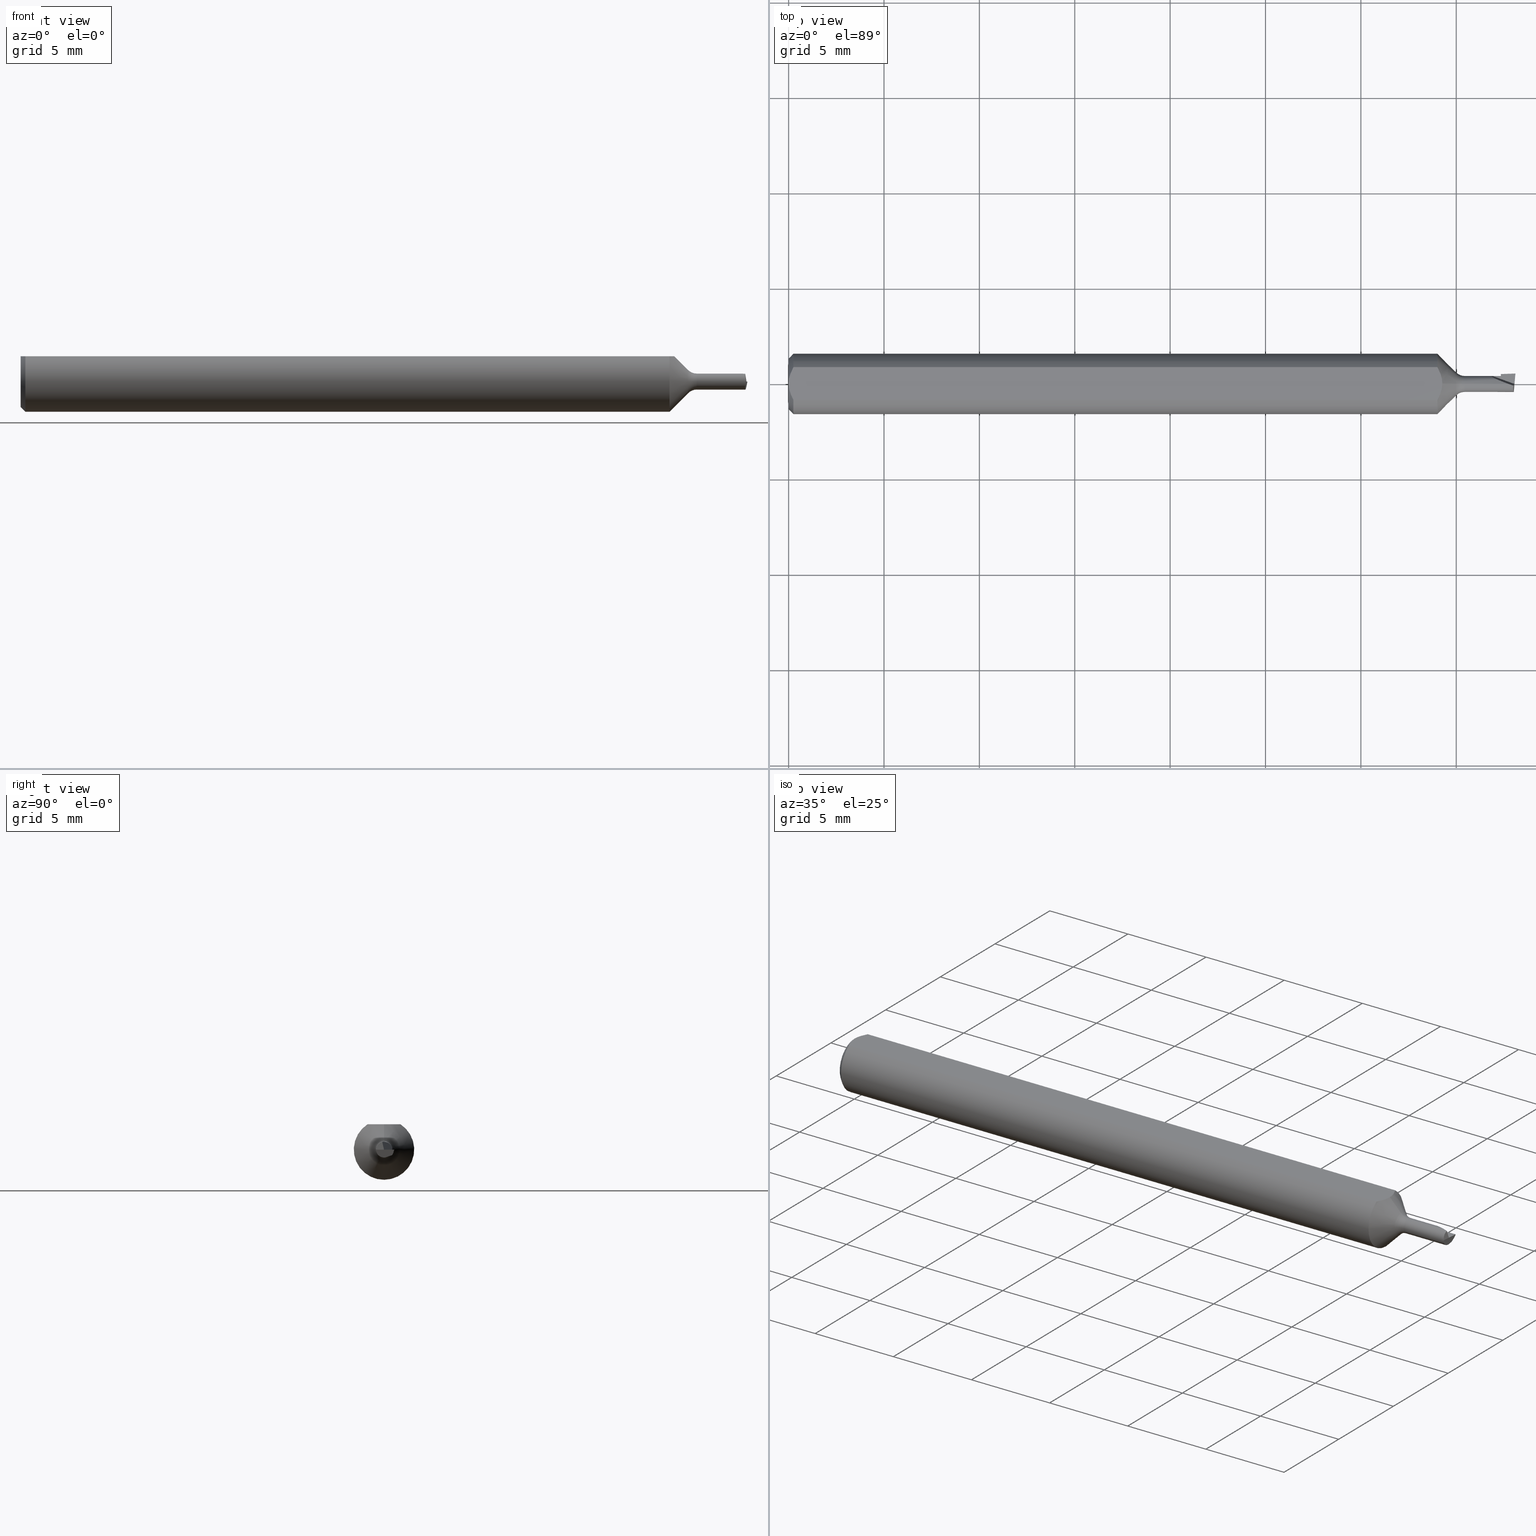
[diagram: canonical four-view strip — front | top / right | iso, engineering-drawing reading convention]
A machine part, canonical four-view strip (front | top / right | iso — engineering-drawing reading convention). The complete STEP part file that produces these views, byte-faithful:
ISO-10303-21;
HEADER;
FILE_DESCRIPTION (( 'STEP AP203' ),
    '1' );
FILE_NAME ('210031-MB040100.STEP',
    '2025-01-30T17:45:15',
    ( '' ),
    ( '' ),
    'SwSTEP 2.0',
    'SolidWorks 2024',
    '' );
FILE_SCHEMA (( 'CONFIG_CONTROL_DESIGN' ));
ENDSEC;

DATA;
#1 = VECTOR ( 'NONE', #441, 39.37007874015748143 ) ;
#2 = CARTESIAN_POINT ( 'NONE',  ( 1.470018275189427071, 0.02045301509892536590, -1.647564196170101210E-18 ) ) ;
#3 = CARTESIAN_POINT ( 'NONE',  ( 1.395355339059327404, 0.000000000000000000, 0.04150000000000000216 ) ) ;
#4 = APPLICATION_CONTEXT ( 'configuration controlled 3d designs of mechanical parts and assemblies' ) ;
#5 = EDGE_CURVE ( 'NONE', #504, #44, #544, .T. ) ;
#6 = ORIENTED_EDGE ( 'NONE', *, *, #378, .F. ) ;
#7 = CARTESIAN_POINT ( 'NONE',  ( 1.405807281785768525, 0.03358807364565601083, -2.052597612783503544E-18 ) ) ;
#8 = CARTESIAN_POINT ( 'NONE',  ( 1.496425322068737573, 0.005643332364873441392, -0.01550492824296752052 ) ) ;
#9 = ORIENTED_EDGE ( 'NONE', *, *, #357, .F. ) ;
#10 = AXIS2_PLACEMENT_3D ( 'NONE', #467, #445, #404 ) ;
#11 = DIRECTION ( 'NONE',  ( 0.9993908270190960952, 0.03489949670248750774, -0.000000000000000000 ) ) ;
#12 = CARTESIAN_POINT ( 'NONE',  ( 0.001055043921644817405, -0.01186408073217191071, 0.05235000000000002152 ) ) ;
#13 = ORIENTED_EDGE ( 'NONE', *, *, #86, .T. ) ;
#14 = AXIS2_PLACEMENT_3D ( 'NONE', #169, #67, #178 ) ;
#15 = CARTESIAN_POINT ( 'NONE',  ( 1.470115918604895766, 0.01765687352215218955, -0.005999999999999993186 ) ) ;
#16 = PLANE ( 'NONE',  #600 ) ;
#17 = EDGE_LOOP ( 'NONE', ( #490, #629, #29, #135 ) ) ;
#18 = CARTESIAN_POINT ( 'NONE',  ( 1.495542229423954428, -0.01649999999999988629, 0.008032463953595881181 ) ) ;
#19 = CARTESIAN_POINT ( 'NONE',  ( 1.500000000000000222, 0.000000000000000000, 0.000000000000000000 ) ) ;
#20 = LOCAL_TIME ( 9, 45, 15.00000000000000000, #94 ) ;
#21 = ADVANCED_FACE ( 'NONE', ( #152 ), #463, .F. ) ;
#22 = AXIS2_PLACEMENT_3D ( 'NONE', #449, #393, #179 ) ;
#23 = VERTEX_POINT ( 'NONE', #266 ) ;
#24 = DIRECTION ( 'NONE',  ( -0.1550261498412135730, -0.2183092626835818617, 0.9634873941531152397 ) ) ;
#25 = LINE ( 'NONE', #285, #71 ) ;
#26 = VERTEX_POINT ( 'NONE', #207 ) ;
#27 = CARTESIAN_POINT ( 'NONE',  ( 1.344483314197798984, -0.02321803743435396639, 0.05235000000000001458 ) ) ;
#28 = CARTESIAN_POINT ( 'NONE',  ( 1.495791212049516483, 2.020667218593131014E-18, -0.01649999999999998690 ) ) ;
#29 = ORIENTED_EDGE ( 'NONE', *, *, #167, .T. ) ;
#30 = ADVANCED_FACE ( 'NONE', ( #583 ), #309, .F. ) ;
#31 = CARTESIAN_POINT ( 'NONE',  ( 1.496675430786014616, -0.01650000000000000078, 1.657078857424774083E-16 ) ) ;
#32 = CARTESIAN_POINT ( 'NONE',  ( 1.495443673491787084, 0.02531007852008724038, -0.03465938240595500125 ) ) ;
#33 = VERTEX_POINT ( 'NONE', #369 ) ;
#34 = CARTESIAN_POINT ( 'NONE',  ( 1.470115918604895766, 0.01765687352215218955, -0.005999999999999993186 ) ) ;
#35 = AXIS2_PLACEMENT_3D ( 'NONE', #658, #381, #605 ) ;
#36 = VECTOR ( 'NONE', #92, 39.37007874015748143 ) ;
#37 = ORIENTED_EDGE ( 'NONE', *, *, #230, .T. ) ;
#38 = VERTEX_POINT ( 'NONE', #527 ) ;
#39 =( NAMED_UNIT ( * ) PLANE_ANGLE_UNIT ( ) SI_UNIT ( $, .RADIAN. ) );
#40 = CYLINDRICAL_SURFACE ( 'NONE', #459, 0.01649999999999998690 ) ;
#41 = VECTOR ( 'NONE', #679, 39.37007874015748143 ) ;
#42 = ADVANCED_FACE ( 'NONE', ( #202 ), #478, .F. ) ;
#43 =( BOUNDED_CURVE ( )  B_SPLINE_CURVE ( 3, ( #407, #568, #456, #85 ),
 .UNSPECIFIED., .F., .T. ) 
 B_SPLINE_CURVE_WITH_KNOTS ( ( 4, 4 ),
 ( 5.728084607564590591, 7.298880934359496919 ),
 .UNSPECIFIED. ) 
 CURVE ( )  GEOMETRIC_REPRESENTATION_ITEM ( )  RATIONAL_B_SPLINE_CURVE ( ( 1.000000000000000000, 0.8047378541243627170, 0.8047378541243627170, 1.000000000000000000 ) ) 
 REPRESENTATION_ITEM ( '' )  );
#44 = VERTEX_POINT ( 'NONE', #373 ) ;
#45 = APPROVAL_STATUS ( 'not_yet_approved' ) ;
#46 = CARTESIAN_POINT ( 'NONE',  ( 1.470000000000000195, 0.01650000000000000078, 0.000000000000000000 ) ) ;
#47 = PRODUCT ( '210031-MB040100', '210031-MB040100', '', ( #52 ) ) ;
#48 =( GEOMETRIC_REPRESENTATION_CONTEXT ( 3 ) GLOBAL_UNCERTAINTY_ASSIGNED_CONTEXT ( ( #668 ) ) GLOBAL_UNIT_ASSIGNED_CONTEXT ( ( #257, #39, #579 ) ) REPRESENTATION_CONTEXT ( 'NONE', 'WORKASPACE' ) );
#49 = VERTEX_POINT ( 'NONE', #211 ) ;
#50 = PERSON_AND_ORGANIZATION_ROLE ( 'classification_officer' ) ;
#51 = CARTESIAN_POINT ( 'NONE',  ( 1.497492662452384771, 0.01333106971337489829, -0.01270682067925646593 ) ) ;
#52 = MECHANICAL_CONTEXT ( 'NONE', #549, 'mechanical' ) ;
#53 = CARTESIAN_POINT ( 'NONE',  ( 1.470018275189427071, 0.02045301509892536590, -1.647564196170101210E-18 ) ) ;
#54 = EDGE_CURVE ( 'NONE', #229, #526, #356, .T. ) ;
#55 = EDGE_CURVE ( 'NONE', #526, #229, #125, .T. ) ;
#56 = DIRECTION ( 'NONE',  ( 0.000000000000000000, 0.000000000000000000, 1.000000000000000000 ) ) ;
#57 = APPROVAL_DATE_TIME ( #536, #368 ) ;
#58 = DIRECTION ( 'NONE',  ( -1.000000000000000000, -0.000000000000000000, -0.000000000000000000 ) ) ;
#59 = DIRECTION ( 'NONE',  ( 0.000000000000000000, 0.000000000000000000, -1.000000000000000000 ) ) ;
#60 = DIRECTION ( 'NONE',  ( -0.3303660895493408800, -0.9076733711903733903, -0.2588190451025187966 ) ) ;
#61 = EDGE_CURVE ( 'NONE', #144, #279, #363, .T. ) ;
#62 = CARTESIAN_POINT ( 'NONE',  ( 1.470138601854636073, 0.01700731023731563707, -0.01136877855453887268 ) ) ;
#63 = CARTESIAN_POINT ( 'NONE',  ( 1.418326087892087362, 0.06798321074129824726, -1.341783904977988432E-18 ) ) ;
#64 = PRODUCT_DEFINITION ( 'UNKNOWN', '', #111, #168 ) ;
#65 = B_SPLINE_CURVE_WITH_KNOTS ( 'NONE', 3,
 ( #604, #350, #411, #27, #186, #517 ),
 .UNSPECIFIED., .F., .F.,
 ( 4, 2, 4 ),
 ( 0.002951453973688350149, 0.003400644490106725579, 0.003849835006525100575 ),
 .UNSPECIFIED. ) ;
#66 = ORIENTED_EDGE ( 'NONE', *, *, #55, .F. ) ;
#67 = DIRECTION ( 'NONE',  ( -1.000000000000000000, -0.000000000000000000, -0.000000000000000000 ) ) ;
#68 = CARTESIAN_POINT ( 'NONE',  ( 1.405807281785768525, 0.03358807364565601083, -2.052597612783503544E-18 ) ) ;
#69 = VECTOR ( 'NONE', #688, 39.37007874015748854 ) ;
#70 = ORIENTED_EDGE ( 'NONE', *, *, #446, .T. ) ;
#71 = VECTOR ( 'NONE', #240, 39.37007874015748143 ) ;
#72 = DIRECTION ( 'NONE',  ( 0.1396943646708923570, 0.000000000000000000, -0.9901946699913082295 ) ) ;
#73 = CARTESIAN_POINT ( 'NONE',  ( 0.000000000000000000, 0.000000000000000000, 0.000000000000000000 ) ) ;
#74 = ORIENTED_EDGE ( 'NONE', *, *, #314, .F. ) ;
#75 = AXIS2_PLACEMENT_3D ( 'NONE', #431, #113, #273 ) ;
#76 = DIRECTION ( 'NONE',  ( -0.7071067811865437980, 8.659560562354978464E-17, -0.7071067811865512365 ) ) ;
#77 = DIRECTION ( 'NONE',  ( -1.000000000000000000, -0.000000000000000000, -0.000000000000000000 ) ) ;
#78 = EDGE_CURVE ( 'NONE', #656, #212, #262, .T. ) ;
#79 = ORIENTED_EDGE ( 'NONE', *, *, #539, .T. ) ;
#80 = LINE ( 'NONE', #403, #382 ) ;
#81 = CYLINDRICAL_SURFACE ( 'NONE', #22, 0.01649999999999998690 ) ;
#82 = ORGANIZATION ( 'UNSPECIFIED', 'UNSPECIFIED', '' ) ;
#83 = ORIENTED_EDGE ( 'NONE', *, *, #387, .T. ) ;
#84 = CARTESIAN_POINT ( 'NONE',  ( 1.496675430786014616, -0.01650000000000000078, 1.657078857424774083E-16 ) ) ;
#85 = CARTESIAN_POINT ( 'NONE',  ( 1.496675430786014616, -0.01650000000000000078, 1.657078857424774083E-16 ) ) ;
#86 = EDGE_CURVE ( 'NONE', #26, #229, #654, .T. ) ;
#87 = EDGE_LOOP ( 'NONE', ( #531, #637 ) ) ;
#88 = LINE ( 'NONE', #299, #137 ) ;
#89 = CARTESIAN_POINT ( 'NONE',  ( 1.395355339059327404, 0.000000000000000000, 0.000000000000000000 ) ) ;
#90 = EDGE_LOOP ( 'NONE', ( #70, #353, #400, #306 ) ) ;
#91 = CARTESIAN_POINT ( 'NONE',  ( 1.339150000000000285, 0.000000000000000000, 0.000000000000000000 ) ) ;
#92 = DIRECTION ( 'NONE',  ( 0.1293675338645381423, 0.9317961139776900215, 0.3391460498927904577 ) ) ;
#93 = VERTEX_POINT ( 'NONE', #319 ) ;
#94 = COORDINATED_UNIVERSAL_TIME_OFFSET ( 8, 0, .BEHIND. ) ;
#95 = ORIENTED_EDGE ( 'NONE', *, *, #357, .T. ) ;
#96 = EDGE_LOOP ( 'NONE', ( #557, #181, #405, #199, #671, #209 ) ) ;
#97 = PERSON_AND_ORGANIZATION ( #697, #82 ) ;
#98 = APPROVAL ( #45, 'UNSPECIFIED' ) ;
#99 = DIRECTION ( 'NONE',  ( 0.03162968562512429721, -0.9057556888204041368, 0.4226182617407003295 ) ) ;
#100 = ORIENTED_EDGE ( 'NONE', *, *, #365, .F. ) ;
#101 = CALENDAR_DATE ( 2025, 30, 1 ) ;
#102 = CARTESIAN_POINT ( 'NONE',  ( 1.485163143730661606, 0.000000000000000000, 0.01649999999999998690 ) ) ;
#103 = ORIENTED_EDGE ( 'NONE', *, *, #237, .T. ) ;
#104 = DIRECTION ( 'NONE',  ( 0.000000000000000000, 0.000000000000000000, -1.000000000000000000 ) ) ;
#105 = AXIS2_PLACEMENT_3D ( 'NONE', #621, #556, #563 ) ;
#106 = EDGE_CURVE ( 'NONE', #394, #279, #534, .T. ) ;
#107 = DIRECTION ( 'NONE',  ( 1.000000000000000000, 0.000000000000000000, 0.000000000000000000 ) ) ;
#108 = VECTOR ( 'NONE', #494, 39.37007874015748854 ) ;
#109 = COORDINATED_UNIVERSAL_TIME_OFFSET ( 8, 0, .BEHIND. ) ;
#110 = DIRECTION ( 'NONE',  ( 0.9396926207859126468, -0.3420201433256568335, 0.000000000000000000 ) ) ;
#111 = PRODUCT_DEFINITION_FORMATION_WITH_SPECIFIED_SOURCE ( 'ANY', '', #47, .NOT_KNOWN. ) ;
#112 = AXIS2_PLACEMENT_3D ( 'NONE', #19, #297, #617 ) ;
#113 = DIRECTION ( 'NONE',  ( -1.000000000000000000, -0.000000000000000000, -0.000000000000000000 ) ) ;
#114 = FACE_OUTER_BOUND ( 'NONE', #687, .T. ) ;
#115 = ADVANCED_FACE ( 'NONE', ( #143 ), #40, .T. ) ;
#116 = PLANE ( 'NONE',  #412 ) ;
#117 = CARTESIAN_POINT ( 'NONE',  ( 1.496425322068737573, 0.005643332364873441392, -0.01550492824296752052 ) ) ;
#118 = MANIFOLD_SOLID_BREP ( 'Cut-Extrude8', #626 ) ;
#119 = LINE ( 'NONE', #328, #223 ) ;
#120 = CARTESIAN_POINT ( 'NONE',  ( 0.000000000000000000, 0.000000000000000000, 0.05235000000000005621 ) ) ;
#121 = ORIENTED_EDGE ( 'NONE', *, *, #446, .F. ) ;
#122 = CARTESIAN_POINT ( 'NONE',  ( 1.500000000000000222, 0.06235000000000000264, 0.05235000000000001458 ) ) ;
#123 = PLANE ( 'NONE',  #198 ) ;
#124 = AXIS2_PLACEMENT_3D ( 'NONE', #63, #483, #649 ) ;
#125 = CIRCLE ( 'NONE', #520, 0.05235000000000005621 ) ;
#126 = EDGE_CURVE ( 'NONE', #231, #313, #220, .T. ) ;
#127 = ORIENTED_EDGE ( 'NONE', *, *, #415, .T. ) ;
#128 = CARTESIAN_POINT ( 'NONE',  ( 1.470000000000000195, 0.000000000000000000, 0.000000000000000000 ) ) ;
#129 = FACE_OUTER_BOUND ( 'NONE', #388, .T. ) ;
#130 = ORIENTED_EDGE ( 'NONE', *, *, #150, .F. ) ;
#131 = AXIS2_PLACEMENT_3D ( 'NONE', #505, #359, #414 ) ;
#132 = FACE_OUTER_BOUND ( 'NONE', #694, .T. ) ;
#133 = CARTESIAN_POINT ( 'NONE',  ( 1.470000000000000195, 0.02045237691524754570, -1.865940685009545610E-18 ) ) ;
#134 =( BOUNDED_CURVE ( )  B_SPLINE_CURVE ( 3, ( #117, #226, #547, #432 ),
 .UNSPECIFIED., .F., .T. ) 
 B_SPLINE_CURVE_WITH_KNOTS ( ( 4, 4 ),
 ( 5.379018757165728637, 5.728084607564590591 ),
 .UNSPECIFIED. ) 
 CURVE ( )  GEOMETRIC_REPRESENTATION_ITEM ( )  RATIONAL_B_SPLINE_CURVE ( ( 1.000000000000000000, 0.9898718353414721616, 0.9898718353414721616, 1.000000000000000000 ) ) 
 REPRESENTATION_ITEM ( '' )  );
#135 = ORIENTED_EDGE ( 'NONE', *, *, #302, .T. ) ;
#136 = CARTESIAN_POINT ( 'NONE',  ( 1.395355339059327404, 0.000000000000000000, 0.000000000000000000 ) ) ;
#137 = VECTOR ( 'NONE', #303, 39.37007874015748143 ) ;
#138 = ADVANCED_FACE ( 'NONE', ( #218 ), #322, .F. ) ;
#139 = VERTEX_POINT ( 'NONE', #162 ) ;
#140 = FACE_OUTER_BOUND ( 'NONE', #96, .T. ) ;
#141 = FACE_OUTER_BOUND ( 'NONE', #460, .T. ) ;
#142 = ORIENTED_EDGE ( 'NONE', *, *, #167, .F. ) ;
#143 = FACE_OUTER_BOUND ( 'NONE', #553, .T. ) ;
#144 = VERTEX_POINT ( 'NONE', #8 ) ;
#145 = LINE ( 'NONE', #451, #689 ) ;
#146 = CONICAL_SURFACE ( 'NONE', #206, 0.02382233047033627607, 0.7853981633974536081 ) ;
#147 = DIRECTION ( 'NONE',  ( 0.000000000000000000, -0.4228298219691067339, -0.9062091048171904140 ) ) ;
#148 = B_SPLINE_CURVE_WITH_KNOTS ( 'NONE', 3,
 ( #538, #277, #12, #646, #542, #173 ),
 .UNSPECIFIED., .F., .F.,
 ( 4, 2, 4 ),
 ( 0.001820301466808305416, 0.002269751589840578697, 0.002719201712872851978 ),
 .UNSPECIFIED. ) ;
#149 = VERTEX_POINT ( 'NONE', #386 ) ;
#150 = EDGE_CURVE ( 'NONE', #144, #364, #134, .T. ) ;
#151 =( LENGTH_UNIT ( ) NAMED_UNIT ( * ) SI_UNIT ( $, .METRE. ) );
#152 = FACE_OUTER_BOUND ( 'NONE', #341, .T. ) ;
#153 = ORIENTED_EDGE ( 'NONE', *, *, #54, .F. ) ;
#154 = PERSON_AND_ORGANIZATION ( #697, #82 ) ;
#155 = CARTESIAN_POINT ( 'NONE',  ( 0.004671770759546966557, 0.02323517832780101766, 0.05235000000000002152 ) ) ;
#156 = ORIENTED_EDGE ( 'NONE', *, *, #5, .T. ) ;
#157 = DATE_TIME_ROLE ( 'classification_date' ) ;
#158 = CARTESIAN_POINT ( 'NONE',  ( 0.000000000000000000, 0.000000000000000000, 0.05235000000000005621 ) ) ;
#159 = ADVANCED_FACE ( 'NONE', ( #176 ), #398, .T. ) ;
#160 = ADVANCED_FACE ( 'NONE', ( #376 ), #705, .F. ) ;
#161 = PERSON_AND_ORGANIZATION_ROLE ( 'creator' ) ;
#162 = CARTESIAN_POINT ( 'NONE',  ( 1.339150000000000285, 0.03386738844375220686, 0.05235000000000000070 ) ) ;
#163 = VECTOR ( 'NONE', #215, 39.37007874015748143 ) ;
#164 = APPROVAL_DATE_TIME ( #522, #511 ) ;
#165 = DIRECTION ( 'NONE',  ( 1.000000000000000000, 0.000000000000000000, 0.000000000000000000 ) ) ;
#166 = VECTOR ( 'NONE', #612, 39.37007874015748143 ) ;
#167 = EDGE_CURVE ( 'NONE', #231, #23, #611, .T. ) ;
#168 = DESIGN_CONTEXT ( 'detailed design', #4, 'design' ) ;
#169 = CARTESIAN_POINT ( 'NONE',  ( 1.339150000000000285, 0.000000000000000000, 0.000000000000000000 ) ) ;
#170 = DIRECTION ( 'NONE',  ( 0.000000000000000000, 0.000000000000000000, -1.000000000000000000 ) ) ;
#171 = CC_DESIGN_PERSON_AND_ORGANIZATION_ASSIGNMENT ( #429, #635, ( #111 ) ) ;
#172 = CARTESIAN_POINT ( 'NONE',  ( 1.491155917282976473, 0.03218992960932576253, 0.06931876481191019679 ) ) ;
#173 = CARTESIAN_POINT ( 'NONE',  ( 0.01000000000000853331, -0.03386738844395138087, 0.05235000000000001458 ) ) ;
#174 = VERTEX_POINT ( 'NONE', #599 ) ;
#175 = CARTESIAN_POINT ( 'NONE',  ( 1.498118091431547949, -1.031336641992635892E-05, 2.018179798846331726E-16 ) ) ;
#176 = FACE_OUTER_BOUND ( 'NONE', #641, .T. ) ;
#177 = ORIENTED_EDGE ( 'NONE', *, *, #659, .F. ) ;
#178 = DIRECTION ( 'NONE',  ( 0.000000000000000000, 0.000000000000000000, 1.000000000000000000 ) ) ;
#179 = DIRECTION ( 'NONE',  ( 0.000000000000000000, 0.000000000000000000, 1.000000000000000000 ) ) ;
#180 = ADVANCED_FACE ( 'NONE', ( #325 ), #307, .F. ) ;
#181 = ORIENTED_EDGE ( 'NONE', *, *, #427, .T. ) ;
#182 = DIRECTION ( 'NONE',  ( -1.000000000000000000, 0.000000000000000000, 0.000000000000000000 ) ) ;
#183 = CARTESIAN_POINT ( 'NONE',  ( 1.377677669529663751, 2.917394075872780740E-18, -0.02382233047033629689 ) ) ;
#184 = LOCAL_TIME ( 9, 45, 15.00000000000000000, #585 ) ;
#185 = ORIENTED_EDGE ( 'NONE', *, *, #433, .F. ) ;
#186 = CARTESIAN_POINT ( 'NONE',  ( 1.342000635225909733, -0.02861935738783996305, 0.05235000000000002152 ) ) ;
#187 = DIRECTION ( 'NONE',  ( 0.000000000000000000, 0.000000000000000000, -1.000000000000000000 ) ) ;
#188 = ORIENTED_EDGE ( 'NONE', *, *, #78, .T. ) ;
#189 = EDGE_CURVE ( 'NONE', #301, #493, #228, .T. ) ;
#190 = CARTESIAN_POINT ( 'NONE',  ( 1.497036667718402159, -0.001533184273729277678, 0.006721047490512752770 ) ) ;
#191 = CARTESIAN_POINT ( 'NONE',  ( 1.497178205057700051, 0.01106612603217686439, -0.01353119276150185034 ) ) ;
#192 = ORIENTED_EDGE ( 'NONE', *, *, #237, .F. ) ;
#193 = CARTESIAN_POINT ( 'NONE',  ( 1.458607466065616309, 0.009665476220843863264, 0.01650000000000004588 ) ) ;
#194 = CARTESIAN_POINT ( 'NONE',  ( 1.500296196177055563, 0.02488553779562373974, 2.774533118565267485E-16 ) ) ;
#195 = CC_DESIGN_PERSON_AND_ORGANIZATION_ASSIGNMENT ( #265, #205, ( #47 ) ) ;
#196 = ORIENTED_EDGE ( 'NONE', *, *, #477, .F. ) ;
#197 = CARTESIAN_POINT ( 'NONE',  ( 1.341993063989529666, 0.02863329606483934128, 0.05235000000000002152 ) ) ;
#198 = AXIS2_PLACEMENT_3D ( 'NONE', #73, #397, #187 ) ;
#199 = ORIENTED_EDGE ( 'NONE', *, *, #523, .T. ) ;
#200 = CARTESIAN_POINT ( 'NONE',  ( 1.485163143730661606, 0.000000000000000000, 0.01649999999999998690 ) ) ;
#201 = AXIS2_PLACEMENT_3D ( 'NONE', #662, #482, #225 ) ;
#202 = FACE_OUTER_BOUND ( 'NONE', #570, .T. ) ;
#203 = EDGE_CURVE ( 'NONE', #229, #333, #148, .T. ) ;
#204 = ORIENTED_EDGE ( 'NONE', *, *, #106, .F. ) ;
#205 = PERSON_AND_ORGANIZATION_ROLE ( 'design_owner' ) ;
#206 = AXIS2_PLACEMENT_3D ( 'NONE', #235, #669, #616 ) ;
#207 = CARTESIAN_POINT ( 'NONE',  ( 0.01000000000000001929, 0.03386738844375217911, 0.05235000000000001458 ) ) ;
#208 = VECTOR ( 'NONE', #58, 39.37007874015748143 ) ;
#209 = ORIENTED_EDGE ( 'NONE', *, *, #387, .F. ) ;
#210 = CARTESIAN_POINT ( 'NONE',  ( 0.000000000000000000, 0.000000000000000000, 0.000000000000000000 ) ) ;
#211 = CARTESIAN_POINT ( 'NONE',  ( 1.470397437273016195, 0.009595233637987267070, -0.01406655381079541245 ) ) ;
#212 = VERTEX_POINT ( 'NONE', #383 ) ;
#213 = ADVANCED_FACE ( 'NONE', ( #439 ), #647, .T. ) ;
#214 = ADVANCED_FACE ( 'NONE', ( #114 ), #247, .F. ) ;
#215 = DIRECTION ( 'NONE',  ( 1.000000000000000000, 0.000000000000000000, 0.000000000000000000 ) ) ;
#216 = COORDINATED_UNIVERSAL_TIME_OFFSET ( 8, 0, .BEHIND. ) ;
#217 = CARTESIAN_POINT ( 'NONE',  ( 1.498061498182346352, 0.01495110719910160667, -0.009679404705626250965 ) ) ;
#218 = FACE_OUTER_BOUND ( 'NONE', #292, .T. ) ;
#219 = AXIS2_PLACEMENT_3D ( 'NONE', #3, #551, #170 ) ;
#220 = CIRCLE ( 'NONE', #554, 0.02382233047033627607 ) ;
#221 = FACE_OUTER_BOUND ( 'NONE', #603, .T. ) ;
#222 = CARTESIAN_POINT ( 'NONE',  ( 1.470018275189427071, 0.02045301509892494263, -0.004076663151056874809 ) ) ;
#223 = VECTOR ( 'NONE', #270, 39.37007874015747433 ) ;
#224 = ADVANCED_BREP_SHAPE_REPRESENTATION ( '210031-MB040100', ( #118, #632 ), #48 ) ;
#225 = DIRECTION ( 'NONE',  ( 0.000000000000000000, 0.000000000000000000, -1.000000000000000000 ) ) ;
#226 = CARTESIAN_POINT ( 'NONE',  ( 1.496173569350491617, 0.003830031936729987648, -0.01616491562459386813 ) ) ;
#227 = DIRECTION ( 'NONE',  ( 0.9864997997699040955, -0.08630754905046565673, 0.1391731009600657154 ) ) ;
#228 = LINE ( 'NONE', #435, #519 ) ;
#229 = VERTEX_POINT ( 'NONE', #120 ) ;
#230 = EDGE_CURVE ( 'NONE', #358, #333, #271, .T. ) ;
#231 = VERTEX_POINT ( 'NONE', #480 ) ;
#232 = LINE ( 'NONE', #392, #108 ) ;
#233 = DIRECTION ( 'NONE',  ( 1.000000000000000000, 0.000000000000000000, 0.000000000000000000 ) ) ;
#234 = ORIENTED_EDGE ( 'NONE', *, *, #539, .F. ) ;
#235 = CARTESIAN_POINT ( 'NONE',  ( 1.377677669529663751, 0.000000000000000000, 0.000000000000000000 ) ) ;
#236 = CARTESIAN_POINT ( 'NONE',  ( 0.000000000000000000, 0.03386738844375220686, 0.05235000000000000070 ) ) ;
#237 = EDGE_CURVE ( 'NONE', #493, #149, #275, .T. ) ;
#238 = ORIENTED_EDGE ( 'NONE', *, *, #587, .F. ) ;
#239 = CARTESIAN_POINT ( 'NONE',  ( 1.445184144298829798, 0.01649999999999998343, 0.009665476220843979491 ) ) ;
#240 = DIRECTION ( 'NONE',  ( 0.02467767077832629108, -0.7066760308408363001, -0.7071067811865460184 ) ) ;
#241 = ORIENTED_EDGE ( 'NONE', *, *, #230, .F. ) ;
#242 = LINE ( 'NONE', #455, #41 ) ;
#243 = DIRECTION ( 'NONE',  ( 0.000000000000000000, 0.000000000000000000, 1.000000000000000000 ) ) ;
#244 = ORIENTED_EDGE ( 'NONE', *, *, #659, .T. ) ;
#245 = CARTESIAN_POINT ( 'NONE',  ( 0.000000000000000000, 0.000000000000000000, 0.000000000000000000 ) ) ;
#246 = ORIENTED_EDGE ( 'NONE', *, *, #150, .T. ) ;
#247 = TOROIDAL_SURFACE ( 'NONE', #503, 0.04150000000000000216, 0.02500000000000003261 ) ;
#248 = AXIS2_PLACEMENT_3D ( 'NONE', #68, #60, #110 ) ;
#249 = FACE_OUTER_BOUND ( 'NONE', #622, .T. ) ;
#250 = ADVANCED_FACE ( 'NONE', ( #430 ), #16, .F. ) ;
#251 = EDGE_LOOP ( 'NONE', ( #127, #413, #516, #192 ) ) ;
#252 = VERTEX_POINT ( 'NONE', #624 ) ;
#253 = APPLICATION_PROTOCOL_DEFINITION ( 'international standard', 'config_control_design', 1994, #549 ) ;
#254 = CIRCLE ( 'NONE', #201, 0.06235000000000000264 ) ;
#255 = ORIENTED_EDGE ( 'NONE', *, *, #290, .T. ) ;
#256 = ORIENTED_EDGE ( 'NONE', *, *, #454, .T. ) ;
#257 =( CONVERSION_BASED_UNIT ( 'INCH', #318 ) LENGTH_UNIT ( ) NAMED_UNIT ( #372 ) );
#258 = CARTESIAN_POINT ( 'NONE',  ( 1.470115918604895766, 0.01765687352215218955, -0.005999999999999993186 ) ) ;
#259 = ADVANCED_FACE ( 'NONE', ( #452 ), #81, .T. ) ;
#260 = ORIENTED_EDGE ( 'NONE', *, *, #324, .T. ) ;
#261 = DATE_AND_TIME ( #101, #184 ) ;
#262 = LINE ( 'NONE', #685, #163 ) ;
#263 = AXIS2_PLACEMENT_3D ( 'NONE', #46, #366, #475 ) ;
#264 = PRODUCT_DEFINITION_SHAPE ( 'NONE', 'NONE',  #64 ) ;
#265 = PERSON_AND_ORGANIZATION ( #697, #82 ) ;
#266 = CARTESIAN_POINT ( 'NONE',  ( 1.395355339059327404, 0.000000000000000000, 0.01649999999999997302 ) ) ;
#267 = SHAPE_DEFINITION_REPRESENTATION ( #264, #224 ) ;
#268 = CALENDAR_DATE ( 2025, 30, 1 ) ;
#269 = CARTESIAN_POINT ( 'NONE',  ( 0.000000000000000000, -0.03386738844375220686, 0.05235000000000000070 ) ) ;
#270 = DIRECTION ( 'NONE',  ( 0.01474916463202824261, -0.4223608141144115646, -0.9063077870366496036 ) ) ;
#271 = LINE ( 'NONE', #269, #208 ) ;
#272 = ADVANCED_FACE ( 'NONE', ( #129 ), #540, .T. ) ;
#273 = DIRECTION ( 'NONE',  ( 0.000000000000000000, 0.000000000000000000, 1.000000000000000000 ) ) ;
#274 = DIRECTION ( 'NONE',  ( 0.000000000000000000, 0.000000000000000000, 1.000000000000000000 ) ) ;
#275 =( BOUNDED_CURVE ( )  B_SPLINE_CURVE ( 3, ( #596, #222, #338, #559 ),
 .UNSPECIFIED., .F., .T. ) 
 B_SPLINE_CURVE_WITH_KNOTS ( ( 4, 4 ),
 ( 3.141592653589793116, 3.730161339530075448 ),
 .UNSPECIFIED. ) 
 CURVE ( )  GEOMETRIC_REPRESENTATION_ITEM ( )  RATIONAL_B_SPLINE_CURVE ( ( 1.000000000000000000, 0.9713399782003915295, 0.9713399782003915295, 1.000000000000000000 ) ) 
 REPRESENTATION_ITEM ( '' )  );
#276 = DIRECTION ( 'NONE',  ( 0.9396926207859126468, -0.3420201433256568335, -0.000000000000000000 ) ) ;
#277 = CARTESIAN_POINT ( 'NONE',  ( -8.005211676014286058E-16, -0.005965286321711137096, 0.05235000000000002152 ) ) ;
#278 = EDGE_CURVE ( 'NONE', #533, #614, #355, .T. ) ;
#279 = VERTEX_POINT ( 'NONE', #191 ) ;
#280 = LINE ( 'NONE', #485, #560 ) ;
#281 = CARTESIAN_POINT ( 'NONE',  ( 1.395355339059327404, 0.000000000000000000, 0.000000000000000000 ) ) ;
#282 = AXIS2_PLACEMENT_3D ( 'NONE', #609, #77, #243 ) ;
#283 = ORIENTED_EDGE ( 'NONE', *, *, #5, .F. ) ;
#284 = LINE ( 'NONE', #15, #498 ) ;
#285 = CARTESIAN_POINT ( 'NONE',  ( 1.470115918604895766, 0.01765687352215218955, -0.005999999999999993186 ) ) ;
#286 = AXIS2_PLACEMENT_3D ( 'NONE', #128, #389, #558 ) ;
#287 = ORIENTED_EDGE ( 'NONE', *, *, #615, .F. ) ;
#288 = CARTESIAN_POINT ( 'NONE',  ( 1.495095023175414095, -0.01148879599094874450, 0.01431006791892244258 ) ) ;
#289 = CARTESIAN_POINT ( 'NONE',  ( 1.498905260308435627, 0.01866221948760026644, -0.005999999999999994053 ) ) ;
#290 = EDGE_CURVE ( 'NONE', #26, #139, #573, .T. ) ;
#291 = APPROVAL_PERSON_ORGANIZATION ( #97, #511, #700 ) ;
#292 = EDGE_LOOP ( 'NONE', ( #424, #196, #453, #283 ) ) ;
#293 = CYLINDRICAL_SURFACE ( 'NONE', #525, 0.06235000000000000264 ) ;
#294 = DIRECTION ( 'NONE',  ( 0.000000000000000000, 0.000000000000000000, 1.000000000000000000 ) ) ;
#295 = ORIENTED_EDGE ( 'NONE', *, *, #302, .F. ) ;
#296 = LINE ( 'NONE', #346, #529 ) ;
#297 = DIRECTION ( 'NONE',  ( 1.000000000000000000, 0.000000000000000000, 0.000000000000000000 ) ) ;
#298 = ORIENTED_EDGE ( 'NONE', *, *, #690, .F. ) ;
#299 = CARTESIAN_POINT ( 'NONE',  ( 1.498118993734192772, 3.745356059661343647E-35, -2.052403414867061121E-18 ) ) ;
#300 = CARTESIAN_POINT ( 'NONE',  ( 1.377677669529663751, 0.000000000000000000, 0.000000000000000000 ) ) ;
#301 = VERTEX_POINT ( 'NONE', #133 ) ;
#302 = EDGE_CURVE ( 'NONE', #23, #174, #692, .T. ) ;
#303 = DIRECTION ( 'NONE',  ( -0.08715574274766101082, -0.9961946980917453232, -1.875807829048910159E-17 ) ) ;
#304 = CARTESIAN_POINT ( 'NONE',  ( 0.01000000000000001929, 0.03386738844375217911, 0.05235000000000001458 ) ) ;
#305 = CC_DESIGN_APPROVAL ( #368, ( #395 ) ) ;
#306 = ORIENTED_EDGE ( 'NONE', *, *, #415, .F. ) ;
#307 = TOROIDAL_SURFACE ( 'NONE', #703, 0.04150000000000000216, 0.02500000000000003261 ) ;
#308 = DATE_AND_TIME ( #375, #20 ) ;
#309 = PLANE ( 'NONE',  #476 ) ;
#310 = EDGE_LOOP ( 'NONE', ( #421, #677, #121, #349, #336, #633 ) ) ;
#311 = DATE_TIME_ROLE ( 'creation_date' ) ;
#312 = AXIS2_PLACEMENT_3D ( 'NONE', #122, #59, #385 ) ;
#313 = VERTEX_POINT ( 'NONE', #183 ) ;
#314 = EDGE_CURVE ( 'NONE', #457, #26, #320, .T. ) ;
#315 = ORIENTED_EDGE ( 'NONE', *, *, #203, .F. ) ;
#316 = DIRECTION ( 'NONE',  ( 0.000000000000000000, 0.000000000000000000, -1.000000000000000000 ) ) ;
#317 = ORIENTED_EDGE ( 'NONE', *, *, #278, .F. ) ;
#318 = LENGTH_MEASURE_WITH_UNIT ( LENGTH_MEASURE( 0.02539999999999999897 ), #151 );
#319 = CARTESIAN_POINT ( 'NONE',  ( 1.349150000000000293, -2.188256422100624130E-21, 0.05235000000000001458 ) ) ;
#320 = CIRCLE ( 'NONE', #10, 0.06235000000000000264 ) ;
#321 = PERSON_AND_ORGANIZATION ( #697, #82 ) ;
#322 = PLANE ( 'NONE',  #248 ) ;
#323 = CALENDAR_DATE ( 2025, 30, 1 ) ;
#324 = EDGE_CURVE ( 'NONE', #313, #231, #682, .T. ) ;
#325 = FACE_OUTER_BOUND ( 'NONE', #17, .T. ) ;
#326 = APPROVAL_PERSON_ORGANIZATION ( #321, #98, #693 ) ;
#327 = AXIS2_PLACEMENT_3D ( 'NONE', #89, #401, #294 ) ;
#328 = CARTESIAN_POINT ( 'NONE',  ( 1.470018275189427071, 0.02045301509892536590, -1.647564196170101210E-18 ) ) ;
#329 = DIRECTION ( 'NONE',  ( -1.000000000000000000, -0.000000000000000000, -0.000000000000000000 ) ) ;
#330 = LINE ( 'NONE', #438, #594 ) ;
#331 = DIRECTION ( 'NONE',  ( 0.9993908270190957621, 0.03489949670250178104, 7.274781992759298740E-18 ) ) ;
#332 = EDGE_CURVE ( 'NONE', #313, #174, #410, .T. ) ;
#333 = VERTEX_POINT ( 'NONE', #665 ) ;
#334 = CARTESIAN_POINT ( 'NONE',  ( 1.470092401201015697, 0.01700474563677122769, -0.01136971199279982261 ) ) ;
#335 = DIRECTION ( 'NONE',  ( 0.000000000000000000, 0.000000000000000000, -1.000000000000000000 ) ) ;
#336 = ORIENTED_EDGE ( 'NONE', *, *, #639, .F. ) ;
#337 = CARTESIAN_POINT ( 'NONE',  ( 1.470046200582772133, 0.01700218047341610361, -0.01137064563590711730 ) ) ;
#338 = CARTESIAN_POINT ( 'NONE',  ( 1.470059567516833310, 0.01927055755266903619, -0.007978070419945325342 ) ) ;
#339 = AXIS2_PLACEMENT_3D ( 'NONE', #390, #165, #335 ) ;
#340 = AXIS2_PLACEMENT_3D ( 'NONE', #589, #423, #104 ) ;
#341 = EDGE_LOOP ( 'NONE', ( #367, #9, #521, #79 ) ) ;
#342 = LINE ( 'NONE', #2, #464 ) ;
#343 = LINE ( 'NONE', #676, #461 ) ;
#344 = CIRCLE ( 'NONE', #286, 0.02045237691524754570 ) ;
#345 = ORIENTED_EDGE ( 'NONE', *, *, #681, .T. ) ;
#346 = CARTESIAN_POINT ( 'NONE',  ( 1.499134075467371652, 0.01925535336588557120, -0.004745920181577967766 ) ) ;
#347 = DIRECTION ( 'NONE',  ( -1.000000000000000000, -0.000000000000000000, -0.000000000000000000 ) ) ;
#348 = VECTOR ( 'NONE', #24, 39.37007874015748854 ) ;
#349 = ORIENTED_EDGE ( 'NONE', *, *, #189, .F. ) ;
#350 = CARTESIAN_POINT ( 'NONE',  ( 1.349150000000000293, -0.005924191432847205653, 0.05235000000000002152 ) ) ;
#351 = FACE_OUTER_BOUND ( 'NONE', #87, .T. ) ;
#352 =( BOUNDED_CURVE ( )  B_SPLINE_CURVE ( 3, ( #575, #288, #18, #84 ),
 .UNSPECIFIED., .F., .T. ) 
 B_SPLINE_CURVE_WITH_KNOTS ( ( 4, 4 ),
 ( 5.951514266577302870, 7.298880934359511130 ),
 .UNSPECIFIED. ) 
 CURVE ( )  GEOMETRIC_REPRESENTATION_ITEM ( )  RATIONAL_B_SPLINE_CURVE ( ( 1.000000000000000000, 0.8543527035284936844, 0.8543527035284936844, 1.000000000000000000 ) ) 
 REPRESENTATION_ITEM ( '' )  );
#353 = ORIENTED_EDGE ( 'NONE', *, *, #690, .T. ) ;
#354 = CARTESIAN_POINT ( 'NONE',  ( 1.470000000000000195, 0.01699961474610954537, -0.01137157948427595412 ) ) ;
#355 = LINE ( 'NONE', #194, #634 ) ;
#356 = CIRCLE ( 'NONE', #340, 0.05235000000000005621 ) ;
#357 = EDGE_CURVE ( 'NONE', #212, #252, #492, .T. ) ;
#358 = VERTEX_POINT ( 'NONE', #613 ) ;
#359 = DIRECTION ( 'NONE',  ( 0.000000000000000000, 0.3420201433256630508, -0.9396926207859105373 ) ) ;
#360 = CARTESIAN_POINT ( 'NONE',  ( 0.000000000000000000, 0.000000000000000000, 0.000000000000000000 ) ) ;
#361 = ORIENTED_EDGE ( 'NONE', *, *, #702, .F. ) ;
#362 = DIRECTION ( 'NONE',  ( -1.000000000000000000, -0.000000000000000000, -0.000000000000000000 ) ) ;
#363 = LINE ( 'NONE', #51, #36 ) ;
#364 = VERTEX_POINT ( 'NONE', #28 ) ;
#365 = EDGE_CURVE ( 'NONE', #588, #49, #25, .T. ) ;
#366 = DIRECTION ( 'NONE',  ( 1.000000000000000000, 0.000000000000000000, 0.000000000000000000 ) ) ;
#367 = ORIENTED_EDGE ( 'NONE', *, *, #564, .F. ) ;
#368 = APPROVAL ( #595, 'UNSPECIFIED' ) ;
#369 = CARTESIAN_POINT ( 'NONE',  ( 1.339150000000000285, 7.635672792683746671E-18, -0.06234999999999999570 ) ) ;
#370 = ORIENTED_EDGE ( 'NONE', *, *, #587, .T. ) ;
#371 = PERSON_AND_ORGANIZATION ( #697, #82 ) ;
#372 = DIMENSIONAL_EXPONENTS ( 1.000000000000000000, 0.000000000000000000, 0.000000000000000000, 0.000000000000000000, 0.000000000000000000, 0.000000000000000000, 0.000000000000000000 ) ;
#373 = CARTESIAN_POINT ( 'NONE',  ( 1.485163143730661606, 0.000000000000000000, 0.01649999999999998690 ) ) ;
#374 = APPROVAL_PERSON_ORGANIZATION ( #371, #368, #380 ) ;
#375 = CALENDAR_DATE ( 2025, 30, 1 ) ;
#376 = FACE_OUTER_BOUND ( 'NONE', #310, .T. ) ;
#377 = AXIS2_PLACEMENT_3D ( 'NONE', #300, #347, #506 ) ;
#378 = EDGE_CURVE ( 'NONE', #364, #614, #43, .T. ) ;
#379 = ADVANCED_FACE ( 'NONE', ( #351 ), #123, .F. ) ;
#380 = APPROVAL_ROLE ( '' ) ;
#381 = DIRECTION ( 'NONE',  ( 1.000000000000000000, 0.000000000000000000, 0.000000000000000000 ) ) ;
#382 = VECTOR ( 'NONE', #675, 39.37007874015748854 ) ;
#383 = CARTESIAN_POINT ( 'NONE',  ( 1.470000000000000195, 0.01649999999999998690, -1.170174725306101331E-17 ) ) ;
#384 = VECTOR ( 'NONE', #76, 39.37007874015748143 ) ;
#385 = DIRECTION ( 'NONE',  ( -1.000000000000000000, 0.000000000000000000, -0.000000000000000000 ) ) ;
#386 = CARTESIAN_POINT ( 'NONE',  ( 1.470138601854636073, 0.01700731023731563707, -0.01136877855453887268 ) ) ;
#387 = EDGE_CURVE ( 'NONE', #279, #49, #343, .T. ) ;
#388 = EDGE_LOOP ( 'NONE', ( #469, #103, #683, #234 ) ) ;
#389 = DIRECTION ( 'NONE',  ( -1.000000000000000000, -0.000000000000000000, -0.000000000000000000 ) ) ;
#390 = CARTESIAN_POINT ( 'NONE',  ( 0.000000000000000000, 0.000000000000000000, 0.000000000000000000 ) ) ;
#391 = ORIENTED_EDGE ( 'NONE', *, *, #552, .T. ) ;
#392 = CARTESIAN_POINT ( 'NONE',  ( 0.000000000000000000, 0.000000000000000000, -0.05235000000000005621 ) ) ;
#393 = DIRECTION ( 'NONE',  ( -1.000000000000000000, -0.000000000000000000, -0.000000000000000000 ) ) ;
#394 = VERTEX_POINT ( 'NONE', #289 ) ;
#395 = SECURITY_CLASSIFICATION ( '', '', #471 ) ;
#396 = LINE ( 'NONE', #488, #1 ) ;
#397 = DIRECTION ( 'NONE',  ( 1.000000000000000000, 0.000000000000000000, 0.000000000000000000 ) ) ;
#398 = CONICAL_SURFACE ( 'NONE', #35, 0.05235000000000005621, 0.7853981633974447263 ) ;
#399 = ADVANCED_FACE ( 'NONE', ( #141 ), #515, .F. ) ;
#400 = ORIENTED_EDGE ( 'NONE', *, *, #532, .F. ) ;
#401 = DIRECTION ( 'NONE',  ( -1.000000000000000000, -0.000000000000000000, -0.000000000000000000 ) ) ;
#402 = ORIENTED_EDGE ( 'NONE', *, *, #427, .F. ) ;
#403 = CARTESIAN_POINT ( 'NONE',  ( 1.470000000000000195, 0.02021319902060507434, -0.01020193046305364892 ) ) ;
#404 = DIRECTION ( 'NONE',  ( 0.000000000000000000, 0.000000000000000000, -1.000000000000000000 ) ) ;
#405 = ORIENTED_EDGE ( 'NONE', *, *, #564, .T. ) ;
#406 = CARTESIAN_POINT ( 'NONE',  ( 1.452756378269187909, 0.01649999999999996955, -2.052597612783503544E-18 ) ) ;
#407 = CARTESIAN_POINT ( 'NONE',  ( 1.495791212049516483, 2.020667218593131014E-18, -0.01649999999999998690 ) ) ;
#408 = ADVANCED_FACE ( 'NONE', ( #221 ), #618, .T. ) ;
#409 = ORIENTED_EDGE ( 'NONE', *, *, #278, .T. ) ;
#410 = CIRCLE ( 'NONE', #105, 0.02500000000000003261 ) ;
#411 = CARTESIAN_POINT ( 'NONE',  ( 1.348078678928530838, -0.01191689336434303623, 0.05235000000000002152 ) ) ;
#412 = AXIS2_PLACEMENT_3D ( 'NONE', #172, #227, #72 ) ;
#413 = ORIENTED_EDGE ( 'NONE', *, *, #365, .T. ) ;
#414 = DIRECTION ( 'NONE',  ( 0.000000000000000000, 0.9396926207859103153, 0.3420201433256629953 ) ) ;
#415 = EDGE_CURVE ( 'NONE', #493, #588, #119, .T. ) ;
#416 = ORIENTED_EDGE ( 'NONE', *, *, #61, .T. ) ;
#417 = AXIS2_PLACEMENT_3D ( 'NONE', #91, #672, #630 ) ;
#418 = PERSON_AND_ORGANIZATION_ROLE ( 'creator' ) ;
#419 = VECTOR ( 'NONE', #233, 39.37007874015748143 ) ;
#420 = ORIENTED_EDGE ( 'NONE', *, *, #666, .T. ) ;
#421 = ORIENTED_EDGE ( 'NONE', *, *, #477, .T. ) ;
#422 = PERSON_AND_ORGANIZATION ( #697, #82 ) ;
#423 = DIRECTION ( 'NONE',  ( -1.000000000000000000, -0.000000000000000000, -0.000000000000000000 ) ) ;
#424 = ORIENTED_EDGE ( 'NONE', *, *, #628, .F. ) ;
#425 = CARTESIAN_POINT ( 'NONE',  ( 0.001063697276021621741, 0.01189177144351693215, 0.05235000000000001458 ) ) ;
#426 = DIRECTION ( 'NONE',  ( 0.000000000000000000, -0.7073221891495889979, -0.7068913075831623205 ) ) ;
#427 = EDGE_CURVE ( 'NONE', #144, #252, #280, .T. ) ;
#428 = EDGE_CURVE ( 'NONE', #44, #23, #655, .T. ) ;
#429 = PERSON_AND_ORGANIZATION ( #697, #82 ) ;
#430 = FACE_OUTER_BOUND ( 'NONE', #251, .T. ) ;
#431 = CARTESIAN_POINT ( 'NONE',  ( 1.377677669529663751, 0.000000000000000000, 0.000000000000000000 ) ) ;
#432 = CARTESIAN_POINT ( 'NONE',  ( 1.495791212049516483, 2.020667218593131014E-18, -0.01649999999999998690 ) ) ;
#433 = EDGE_CURVE ( 'NONE', #364, #174, #396, .T. ) ;
#434 = FACE_OUTER_BOUND ( 'NONE', #625, .T. ) ;
#435 = CARTESIAN_POINT ( 'NONE',  ( 0.8843205544173288191, 1.118500449136331903E-34, -6.129228048735424499E-18 ) ) ;
#436 = CIRCLE ( 'NONE', #417, 0.06235000000000000264 ) ;
#437 = PRODUCT_RELATED_PRODUCT_CATEGORY ( 'detail', '', ( #47 ) ) ;
#438 = CARTESIAN_POINT ( 'NONE',  ( 1.470631889223364297, 0.002881408205141592314, -0.01651018642641058701 ) ) ;
#439 = FACE_OUTER_BOUND ( 'NONE', #518, .T. ) ;
#440 = ORIENTED_EDGE ( 'NONE', *, *, #290, .F. ) ;
#441 = DIRECTION ( 'NONE',  ( -1.000000000000000000, -0.000000000000000000, -0.000000000000000000 ) ) ;
#442 = DIRECTION ( 'NONE',  ( -0.9864997997699062049, 0.08630754905046410241, 0.1391731009600518376 ) ) ;
#443 = EDGE_LOOP ( 'NONE', ( #185, #586, #473, #156, #607, #177 ) ) ;
#444 = DIRECTION ( 'NONE',  ( 0.9993908270190960952, 0.03489949670248750774, -0.000000000000000000 ) ) ;
#445 = DIRECTION ( 'NONE',  ( 1.000000000000000000, 0.000000000000000000, 0.000000000000000000 ) ) ;
#446 = EDGE_CURVE ( 'NONE', #493, #38, #342, .T. ) ;
#447 = ORIENTED_EDGE ( 'NONE', *, *, #106, .T. ) ;
#448 = CARTESIAN_POINT ( 'NONE',  ( 1.452756378269187909, 0.01649999999999996955, -2.052597612783503544E-18 ) ) ;
#449 = CARTESIAN_POINT ( 'NONE',  ( 0.000000000000000000, 0.000000000000000000, 0.000000000000000000 ) ) ;
#450 = ORIENTED_EDGE ( 'NONE', *, *, #628, .T. ) ;
#451 = CARTESIAN_POINT ( 'NONE',  ( 1.470000000000000195, 0.01650000000000000078, -1.938066168344637561E-18 ) ) ;
#452 = FACE_OUTER_BOUND ( 'NONE', #443, .T. ) ;
#453 = ORIENTED_EDGE ( 'NONE', *, *, #578, .F. ) ;
#454 = EDGE_CURVE ( 'NONE', #333, #457, #254, .T. ) ;
#455 = CARTESIAN_POINT ( 'NONE',  ( 1.377677669529663751, 0.000000000000000000, 0.02382233047033627607 ) ) ;
#456 = CARTESIAN_POINT ( 'NONE',  ( 1.495311847845374853, -0.01650000000000008057, -0.009665476220843832039 ) ) ;
#457 = VERTEX_POINT ( 'NONE', #550 ) ;
#458 = CARTESIAN_POINT ( 'NONE',  ( 1.339150000000000285, 0.03386738844375220686, 0.05235000000000000070 ) ) ;
#459 = AXIS2_PLACEMENT_3D ( 'NONE', #360, #329, #274 ) ;
#460 = EDGE_LOOP ( 'NONE', ( #345, #409, #6, #130, #416, #204, #298 ) ) ;
#461 = VECTOR ( 'NONE', #670, 39.37007874015748854 ) ;
#462 = LINE ( 'NONE', #684, #384 ) ;
#463 = PLANE ( 'NONE',  #263 ) ;
#464 = VECTOR ( 'NONE', #11, 39.37007874015748854 ) ;
#465 = ORIENTED_EDGE ( 'NONE', *, *, #332, .T. ) ;
#466 = CARTESIAN_POINT ( 'NONE',  ( 1.349150000000000293, 0.005920875246928953770, 0.05235000000000002152 ) ) ;
#467 = CARTESIAN_POINT ( 'NONE',  ( 0.01000000000000001582, 0.000000000000000000, 0.000000000000000000 ) ) ;
#468 = EDGE_CURVE ( 'NONE', #139, #33, #651, .T. ) ;
#469 = ORIENTED_EDGE ( 'NONE', *, *, #189, .T. ) ;
#470 = LOCAL_TIME ( 9, 45, 15.00000000000000000, #479 ) ;
#471 = SECURITY_CLASSIFICATION_LEVEL ( 'unclassified' ) ;
#472 = DIRECTION ( 'NONE',  ( 0.02467767077832642292, -0.7066760308408333024, 0.7071067811865490160 ) ) ;
#473 = ORIENTED_EDGE ( 'NONE', *, *, #666, .F. ) ;
#474 = CARTESIAN_POINT ( 'NONE',  ( 1.349150000000000293, -2.188256422100624130E-21, 0.05235000000000001458 ) ) ;
#475 = DIRECTION ( 'NONE',  ( 0.000000000000000000, 0.000000000000000000, -1.000000000000000000 ) ) ;
#476 = AXIS2_PLACEMENT_3D ( 'NONE', #53, #99, #147 ) ;
#477 = EDGE_CURVE ( 'NONE', #656, #533, #555, .T. ) ;
#478 = PLANE ( 'NONE',  #660 ) ;
#479 = COORDINATED_UNIVERSAL_TIME_OFFSET ( 8, 0, .BEHIND. ) ;
#480 = CARTESIAN_POINT ( 'NONE',  ( 1.377677669529663751, 0.000000000000000000, 0.02382233047033629689 ) ) ;
#481 = LOCAL_TIME ( 9, 45, 15.00000000000000000, #109 ) ;
#482 = DIRECTION ( 'NONE',  ( 1.000000000000000000, 0.000000000000000000, 0.000000000000000000 ) ) ;
#483 = DIRECTION ( 'NONE',  ( 6.641959921575765252E-18, 1.824863490545273093E-17, -1.000000000000000000 ) ) ;
#484 = ADVANCED_FACE ( 'NONE', ( #434 ), #116, .T. ) ;
#485 = CARTESIAN_POINT ( 'NONE',  ( 1.560200597524541877, 0.005643332364873441392, -0.01550492824296752052 ) ) ;
#486 = CARTESIAN_POINT ( 'NONE',  ( 1.377677669529663751, 0.000000000000000000, 0.000000000000000000 ) ) ;
#487 = CC_DESIGN_DATE_AND_TIME_ASSIGNMENT ( #698, #311, ( #64 ) ) ;
#488 = CARTESIAN_POINT ( 'NONE',  ( 0.000000000000000000, 2.020667218593131014E-18, -0.01649999999999998690 ) ) ;
#489 = DIRECTION ( 'NONE',  ( -1.000000000000000000, -0.000000000000000000, -0.000000000000000000 ) ) ;
#490 = ORIENTED_EDGE ( 'NONE', *, *, #332, .F. ) ;
#491 = DIRECTION ( 'NONE',  ( -1.000000000000000000, -0.000000000000000000, -0.000000000000000000 ) ) ;
#492 = CIRCLE ( 'NONE', #282, 0.01650000000000000078 ) ;
#493 = VERTEX_POINT ( 'NONE', #598 ) ;
#494 = DIRECTION ( 'NONE',  ( 0.7071067811865499042, 0.000000000000000000, -0.7071067811865450192 ) ) ;
#495 = DIRECTION ( 'NONE',  ( 0.1396943646708783959, 0.000000000000000000, 0.9901946699913101169 ) ) ;
#496 = EDGE_CURVE ( 'NONE', #526, #457, #232, .T. ) ;
#497 = EDGE_CURVE ( 'NONE', #49, #149, #330, .T. ) ;
#498 = VECTOR ( 'NONE', #444, 39.37007874015748854 ) ;
#499 = ORIENTED_EDGE ( 'NONE', *, *, #496, .F. ) ;
#500 = PLANE ( 'NONE',  #131 ) ;
#501 = DIRECTION ( 'NONE',  ( 0.03489949670248555791, -0.9993908270190963172, 0.000000000000000000 ) ) ;
#502 = CC_DESIGN_APPROVAL ( #98, ( #64 ) ) ;
#503 = AXIS2_PLACEMENT_3D ( 'NONE', #281, #491, #56 ) ;
#504 = VERTEX_POINT ( 'NONE', #652 ) ;
#505 = CARTESIAN_POINT ( 'NONE',  ( 1.560200597524541877, 0.005643332364873441392, -0.01550492824296752052 ) ) ;
#506 = DIRECTION ( 'NONE',  ( 0.000000000000000000, 0.000000000000000000, 1.000000000000000000 ) ) ;
#507 = ADVANCED_FACE ( 'NONE', ( #601 ), #608, .F. ) ;
#508 = ORIENTED_EDGE ( 'NONE', *, *, #433, .T. ) ;
#509 = DIRECTION ( 'NONE',  ( 0.000000000000000000, 0.000000000000000000, 1.000000000000000000 ) ) ;
#510 = CARTESIAN_POINT ( 'NONE',  ( 1.469626060195310613, 0.03168458301180721026, 6.402768735150616918E-18 ) ) ;
#511 = APPROVAL ( #648, 'UNSPECIFIED' ) ;
#512 = ORIENTED_EDGE ( 'NONE', *, *, #203, .T. ) ;
#513 =( BOUNDED_CURVE ( )  B_SPLINE_CURVE ( 3, ( #200, #193, #239, #406 ),
 .UNSPECIFIED., .F., .T. ) 
 B_SPLINE_CURVE_WITH_KNOTS ( ( 4, 4 ),
 ( 4.990162771046298573, 6.560959097841200460 ),
 .UNSPECIFIED. ) 
 CURVE ( )  GEOMETRIC_REPRESENTATION_ITEM ( )  RATIONAL_B_SPLINE_CURVE ( ( 1.000000000000000000, 0.8047378541243637162, 0.8047378541243637162, 1.000000000000000000 ) ) 
 REPRESENTATION_ITEM ( '' )  );
#514 = DIRECTION ( 'NONE',  ( -0.1627401076574671313, -0.4218543546513214282, -0.8919386530593642615 ) ) ;
#515 = PLANE ( 'NONE',  #592 ) ;
#516 = ORIENTED_EDGE ( 'NONE', *, *, #497, .T. ) ;
#517 = CARTESIAN_POINT ( 'NONE',  ( 1.339150000000000285, -0.03386738844375220686, 0.05235000000000000070 ) ) ;
#518 = EDGE_LOOP ( 'NONE', ( #66, #581, #584, #315 ) ) ;
#519 = VECTOR ( 'NONE', #331, 39.37007874015748854 ) ;
#520 = AXIS2_PLACEMENT_3D ( 'NONE', #699, #640, #316 ) ;
#521 = ORIENTED_EDGE ( 'NONE', *, *, #639, .T. ) ;
#522 = DATE_AND_TIME ( #645, #678 ) ;
#523 = EDGE_CURVE ( 'NONE', #619, #149, #545, .T. ) ;
#524 = CARTESIAN_POINT ( 'NONE',  ( 0.007185421074056361733, 0.02868573718286557273, 0.05235000000000002152 ) ) ;
#525 = AXIS2_PLACEMENT_3D ( 'NONE', #245, #362, #623 ) ;
#526 = VERTEX_POINT ( 'NONE', #657 ) ;
#527 = CARTESIAN_POINT ( 'NONE',  ( 1.500000000000000222, 0.02149999999999999481, -1.067128122525102820E-18 ) ) ;
#528 = ORIENTED_EDGE ( 'NONE', *, *, #552, .F. ) ;
#529 = VECTOR ( 'NONE', #514, 39.37007874015748854 ) ;
#530 = PERSON_AND_ORGANIZATION ( #697, #82 ) ;
#531 = ORIENTED_EDGE ( 'NONE', *, *, #54, .T. ) ;
#532 = EDGE_CURVE ( 'NONE', #588, #394, #284, .T. ) ;
#533 = VERTEX_POINT ( 'NONE', #175 ) ;
#534 = LINE ( 'NONE', #217, #69 ) ;
#535 = DIRECTION ( 'NONE',  ( 0.000000000000000000, 0.000000000000000000, 1.000000000000000000 ) ) ;
#536 = DATE_AND_TIME ( #323, #481 ) ;
#537 = AXIS2_PLACEMENT_3D ( 'NONE', #136, #567, #509 ) ;
#538 = CARTESIAN_POINT ( 'NONE',  ( 0.000000000000000000, 0.000000000000000000, 0.05235000000000005621 ) ) ;
#539 = EDGE_CURVE ( 'NONE', #301, #619, #344, .T. ) ;
#540 = CONICAL_SURFACE ( 'NONE', #112, 0.02150000000000000175, 0.03490658503988740280 ) ;
#541 = CARTESIAN_POINT ( 'NONE',  ( 0.000000000000000000, 0.000000000000000000, 0.01649999999999998690 ) ) ;
#542 = CARTESIAN_POINT ( 'NONE',  ( 0.007163450771416337952, -0.02864528976632486554, 0.05235000000000002152 ) ) ;
#543 = CC_DESIGN_PERSON_AND_ORGANIZATION_ASSIGNMENT ( #154, #50, ( #395 ) ) ;
#544 =( BOUNDED_CURVE ( )  B_SPLINE_CURVE ( 3, ( #636, #696, #576, #102 ),
 .UNSPECIFIED., .F., .T. ) 
 B_SPLINE_CURVE_WITH_KNOTS ( ( 4, 4 ),
 ( 4.766733112033625375, 4.990162771046298573 ),
 .UNSPECIFIED. ) 
 CURVE ( )  GEOMETRIC_REPRESENTATION_ITEM ( )  RATIONAL_B_SPLINE_CURVE ( ( 1.000000000000000000, 0.9958442570308264630, 0.9958442570308264630, 1.000000000000000000 ) ) 
 REPRESENTATION_ITEM ( '' )  );
#545 = B_SPLINE_CURVE_WITH_KNOTS ( 'NONE', 3,
 ( #704, #337, #334, #62 ),
 .UNSPECIFIED., .F., .F.,
 ( 4, 4 ),
 ( 2.003483627556229032E-07, 3.726964764491891659E-06 ),
 .UNSPECIFIED. ) ;
#546 = DIRECTION ( 'NONE',  ( -0.03279713600597871509, 0.9391870936218528199, 0.3418361464853330589 ) ) ;
#547 = CARTESIAN_POINT ( 'NONE',  ( 1.495960036649731650, 0.001929674010451341761, -0.01649999999999997996 ) ) ;
#548 = ORIENTED_EDGE ( 'NONE', *, *, #324, .F. ) ;
#549 = APPLICATION_CONTEXT ( 'configuration controlled 3d designs of mechanical parts and assemblies' ) ;
#550 = CARTESIAN_POINT ( 'NONE',  ( 0.01000000000000001582, 0.000000000000000000, -0.06235000000000000264 ) ) ;
#551 = DIRECTION ( 'NONE',  ( 0.000000000000000000, -1.000000000000000000, 0.000000000000000000 ) ) ;
#552 = EDGE_CURVE ( 'NONE', #93, #358, #65, .T. ) ;
#553 = EDGE_LOOP ( 'NONE', ( #246, #508, #295, #577, #661, #188, #95, #402 ) ) ;
#554 = AXIS2_PLACEMENT_3D ( 'NONE', #486, #653, #593 ) ;
#555 = LINE ( 'NONE', #7, #686 ) ;
#556 = DIRECTION ( 'NONE',  ( -0.000000000000000000, 1.000000000000000000, 1.224646799147353207E-16 ) ) ;
#557 = ORIENTED_EDGE ( 'NONE', *, *, #61, .F. ) ;
#558 = DIRECTION ( 'NONE',  ( 0.000000000000000000, 0.000000000000000000, 1.000000000000000000 ) ) ;
#559 = CARTESIAN_POINT ( 'NONE',  ( 1.470138601854636073, 0.01700731023731563707, -0.01136877855453887268 ) ) ;
#560 = VECTOR ( 'NONE', #182, 39.37007874015748143 ) ;
#561 = ORIENTED_EDGE ( 'NONE', *, *, #650, .F. ) ;
#562 = CARTESIAN_POINT ( 'NONE',  ( 1.344488220844932691, 0.02320483992252774658, 0.05235000000000002152 ) ) ;
#563 = DIRECTION ( 'NONE',  ( 0.000000000000000000, -1.224646799147353207E-16, 1.000000000000000000 ) ) ;
#564 = EDGE_CURVE ( 'NONE', #252, #619, #80, .T. ) ;
#565 = CIRCLE ( 'NONE', #537, 0.01649999999999997302 ) ;
#566 = ORIENTED_EDGE ( 'NONE', *, *, #314, .T. ) ;
#567 = DIRECTION ( 'NONE',  ( -1.000000000000000000, -0.000000000000000000, -0.000000000000000000 ) ) ;
#568 = CARTESIAN_POINT ( 'NONE',  ( 1.494945592452613159, -0.009665476220843995103, -0.01649999999999997996 ) ) ;
#569 = CC_DESIGN_DATE_AND_TIME_ASSIGNMENT ( #261, #157, ( #395 ) ) ;
#570 = EDGE_LOOP ( 'NONE', ( #631, #447, #83, #100 ) ) ;
#571 = B_SPLINE_CURVE_WITH_KNOTS ( 'NONE', 3,
 ( #458, #197, #562, #627, #466, #474 ),
 .UNSPECIFIED., .F., .F.,
 ( 4, 2, 4 ),
 ( 0.002053575827796443130, 0.002502514900742396423, 0.002951453973688350149 ),
 .UNSPECIFIED. ) ;
#572 = LINE ( 'NONE', #190, #348 ) ;
#573 = LINE ( 'NONE', #236, #419 ) ;
#574 = ORIENTED_EDGE ( 'NONE', *, *, #468, .F. ) ;
#575 = CARTESIAN_POINT ( 'NONE',  ( 1.495529215183589722, -0.003655992920802996187, 0.01608986375837402269 ) ) ;
#576 = CARTESIAN_POINT ( 'NONE',  ( 1.488546459223992979, -0.001231426132704321365, 0.01649999999999997996 ) ) ;
#577 = ORIENTED_EDGE ( 'NONE', *, *, #428, .F. ) ;
#578 = EDGE_CURVE ( 'NONE', #44, #656, #513, .T. ) ;
#579 =( NAMED_UNIT ( * ) SI_UNIT ( $, .STERADIAN. ) SOLID_ANGLE_UNIT ( ) );
#580 = EDGE_LOOP ( 'NONE', ( #440, #13, #512, #241, #528, #361 ) ) ;
#581 = ORIENTED_EDGE ( 'NONE', *, *, #496, .T. ) ;
#582 = APPROVAL_DATE_TIME ( #308, #98 ) ;
#583 = FACE_OUTER_BOUND ( 'NONE', #90, .T. ) ;
#584 = ORIENTED_EDGE ( 'NONE', *, *, #454, .F. ) ;
#585 = COORDINATED_UNIVERSAL_TIME_OFFSET ( 8, 0, .BEHIND. ) ;
#586 = ORIENTED_EDGE ( 'NONE', *, *, #378, .T. ) ;
#587 = EDGE_CURVE ( 'NONE', #231, #93, #242, .T. ) ;
#588 = VERTEX_POINT ( 'NONE', #34 ) ;
#589 = CARTESIAN_POINT ( 'NONE',  ( 0.000000000000000000, 0.000000000000000000, 0.000000000000000000 ) ) ;
#590 = CC_DESIGN_APPROVAL ( #511, ( #111 ) ) ;
#591 = CC_DESIGN_PERSON_AND_ORGANIZATION_ASSIGNMENT ( #530, #161, ( #111 ) ) ;
#592 = AXIS2_PLACEMENT_3D ( 'NONE', #32, #442, #495 ) ;
#593 = DIRECTION ( 'NONE',  ( 0.000000000000000000, 0.000000000000000000, 1.000000000000000000 ) ) ;
#594 = VECTOR ( 'NONE', #546, 39.37007874015748854 ) ;
#595 = APPROVAL_STATUS ( 'not_yet_approved' ) ;
#596 = CARTESIAN_POINT ( 'NONE',  ( 1.470018275189427071, 0.02045301509892536590, -1.647564196170101210E-18 ) ) ;
#597 = ADVANCED_FACE ( 'NONE', ( #249 ), #293, .T. ) ;
#598 = CARTESIAN_POINT ( 'NONE',  ( 1.470018275189427071, 0.02045301509892536590, -1.647564196170101210E-18 ) ) ;
#599 = CARTESIAN_POINT ( 'NONE',  ( 1.395355339059327404, 2.020667218593130243E-18, -0.01649999999999997302 ) ) ;
#600 = AXIS2_PLACEMENT_3D ( 'NONE', #510, #673, #501 ) ;
#601 = FACE_OUTER_BOUND ( 'NONE', #580, .T. ) ;
#602 = CARTESIAN_POINT ( 'NONE',  ( 1.395355339059327404, 0.000000000000000000, 0.000000000000000000 ) ) ;
#603 = EDGE_LOOP ( 'NONE', ( #691, #664, #574, #674, #238 ) ) ;
#604 = CARTESIAN_POINT ( 'NONE',  ( 1.349150000000000293, -2.188256422100624130E-21, 0.05235000000000001458 ) ) ;
#605 = DIRECTION ( 'NONE',  ( 0.000000000000000000, 0.000000000000000000, -1.000000000000000000 ) ) ;
#606 = ADVANCED_FACE ( 'NONE', ( #140 ), #500, .T. ) ;
#607 = ORIENTED_EDGE ( 'NONE', *, *, #428, .T. ) ;
#608 = PLANE ( 'NONE',  #312 ) ;
#609 = CARTESIAN_POINT ( 'NONE',  ( 1.470000000000000195, 0.000000000000000000, 0.000000000000000000 ) ) ;
#610 = ORIENTED_EDGE ( 'NONE', *, *, #86, .F. ) ;
#611 = CIRCLE ( 'NONE', #219, 0.02500000000000003261 ) ;
#612 = DIRECTION ( 'NONE',  ( -1.000000000000000000, -0.000000000000000000, -0.000000000000000000 ) ) ;
#613 = CARTESIAN_POINT ( 'NONE',  ( 1.339150000000000285, -0.03386738844375220686, 0.05235000000000000070 ) ) ;
#614 = VERTEX_POINT ( 'NONE', #31 ) ;
#615 = EDGE_CURVE ( 'NONE', #313, #33, #462, .T. ) ;
#616 = DIRECTION ( 'NONE',  ( 0.000000000000000000, 0.000000000000000000, 1.000000000000000000 ) ) ;
#617 = DIRECTION ( 'NONE',  ( 0.000000000000000000, 0.000000000000000000, -1.000000000000000000 ) ) ;
#618 = CONICAL_SURFACE ( 'NONE', #75, 0.02382233047033627607, 0.7853981633974536081 ) ;
#619 = VERTEX_POINT ( 'NONE', #354 ) ;
#620 = DIRECTION ( 'NONE',  ( -0.000000000000000000, 1.000000000000000000, 1.824863490545273093E-17 ) ) ;
#621 = CARTESIAN_POINT ( 'NONE',  ( 1.395355339059327404, 5.082284216461516112E-18, -0.04150000000000000216 ) ) ;
#622 = EDGE_LOOP ( 'NONE', ( #695, #667, #37, #256, #566, #255 ) ) ;
#623 = DIRECTION ( 'NONE',  ( 0.000000000000000000, 0.000000000000000000, 1.000000000000000000 ) ) ;
#624 = CARTESIAN_POINT ( 'NONE',  ( 1.470000000000000195, 0.005643332364873441392, -0.01550492824296752052 ) ) ;
#625 = EDGE_LOOP ( 'NONE', ( #450, #420, #317 ) ) ;
#626 = CLOSED_SHELL ( 'NONE', ( #213, #408, #214, #115, #138, #259, #272, #21, #180, #680, #597, #379, #159, #160, #606, #30, #42, #250, #399, #484, #507 ) ) ;
#627 = CARTESIAN_POINT ( 'NONE',  ( 1.348078676938162301, 0.01191467125359127986, 0.05235000000000001458 ) ) ;
#628 = EDGE_CURVE ( 'NONE', #533, #504, #572, .T. ) ;
#629 = ORIENTED_EDGE ( 'NONE', *, *, #126, .F. ) ;
#630 = DIRECTION ( 'NONE',  ( 0.000000000000000000, 0.000000000000000000, 1.000000000000000000 ) ) ;
#631 = ORIENTED_EDGE ( 'NONE', *, *, #532, .T. ) ;
#632 = AXIS2_PLACEMENT_3D ( 'NONE', #210, #642, #107 ) ;
#633 = ORIENTED_EDGE ( 'NONE', *, *, #78, .F. ) ;
#634 = VECTOR ( 'NONE', #663, 39.37007874015748854 ) ;
#635 = PERSON_AND_ORGANIZATION_ROLE ( 'design_supplier' ) ;
#636 = CARTESIAN_POINT ( 'NONE',  ( 1.495529215183589722, -0.003655992920802996187, 0.01608986375837402269 ) ) ;
#637 = ORIENTED_EDGE ( 'NONE', *, *, #55, .T. ) ;
#638 = APPLICATION_PROTOCOL_DEFINITION ( 'international standard', 'config_control_design', 1994, #4 ) ;
#639 = EDGE_CURVE ( 'NONE', #212, #301, #145, .T. ) ;
#640 = DIRECTION ( 'NONE',  ( -1.000000000000000000, -0.000000000000000000, -0.000000000000000000 ) ) ;
#641 = EDGE_LOOP ( 'NONE', ( #499, #153, #610, #74 ) ) ;
#642 = DIRECTION ( 'NONE',  ( 0.000000000000000000, 0.000000000000000000, 1.000000000000000000 ) ) ;
#643 = CC_DESIGN_PERSON_AND_ORGANIZATION_ASSIGNMENT ( #422, #418, ( #64 ) ) ;
#644 = CARTESIAN_POINT ( 'NONE',  ( -8.229892167436566619E-16, 0.005954997531773978219, 0.05235000000000002152 ) ) ;
#645 = CALENDAR_DATE ( 2025, 30, 1 ) ;
#646 = CARTESIAN_POINT ( 'NONE',  ( 0.004679365186825881588, -0.02325953974091120660, 0.05235000000000001458 ) ) ;
#647 = CONICAL_SURFACE ( 'NONE', #339, 0.05235000000000005621, 0.7853981633974447263 ) ;
#648 = APPROVAL_STATUS ( 'not_yet_approved' ) ;
#649 = DIRECTION ( 'NONE',  ( 0.000000000000000000, 1.000000000000000000, 1.824863490545273093E-17 ) ) ;
#650 = EDGE_CURVE ( 'NONE', #33, #358, #436, .T. ) ;
#651 = CIRCLE ( 'NONE', #14, 0.06235000000000000264 ) ;
#652 = CARTESIAN_POINT ( 'NONE',  ( 1.495529215183589722, -0.003655992920802996187, 0.01608986375837402269 ) ) ;
#653 = DIRECTION ( 'NONE',  ( -1.000000000000000000, -0.000000000000000000, -0.000000000000000000 ) ) ;
#654 = B_SPLINE_CURVE_WITH_KNOTS ( 'NONE', 3,
 ( #304, #524, #155, #425, #644, #158 ),
 .UNSPECIFIED., .F., .F.,
 ( 4, 2, 4 ),
 ( 0.0009229516234079832016, 0.001371626545108144309, 0.001820301466808305416 ),
 .UNSPECIFIED. ) ;
#655 = LINE ( 'NONE', #541, #166 ) ;
#656 = VERTEX_POINT ( 'NONE', #448 ) ;
#657 = CARTESIAN_POINT ( 'NONE',  ( 0.000000000000000000, 0.000000000000000000, -0.05235000000000005621 ) ) ;
#658 = CARTESIAN_POINT ( 'NONE',  ( 0.000000000000000000, 0.000000000000000000, 0.000000000000000000 ) ) ;
#659 = EDGE_CURVE ( 'NONE', #174, #23, #565, .T. ) ;
#660 = AXIS2_PLACEMENT_3D ( 'NONE', #258, #472, #426 ) ;
#661 = ORIENTED_EDGE ( 'NONE', *, *, #578, .T. ) ;
#662 = CARTESIAN_POINT ( 'NONE',  ( 0.01000000000000001582, 0.000000000000000000, 0.000000000000000000 ) ) ;
#663 = DIRECTION ( 'NONE',  ( -0.08715574274766191287, -0.9961946980917451011, -2.689833380456643130E-15 ) ) ;
#664 = ORIENTED_EDGE ( 'NONE', *, *, #615, .T. ) ;
#665 = CARTESIAN_POINT ( 'NONE',  ( 0.01000000000000853331, -0.03386738844395138087, 0.05235000000000001458 ) ) ;
#666 = EDGE_CURVE ( 'NONE', #504, #614, #352, .T. ) ;
#667 = ORIENTED_EDGE ( 'NONE', *, *, #650, .T. ) ;
#668 = UNCERTAINTY_MEASURE_WITH_UNIT (LENGTH_MEASURE( 1.000000000000000082E-05 ), #257, 'distance_accuracy_value', 'NONE');
#669 = DIRECTION ( 'NONE',  ( -1.000000000000000000, -0.000000000000000000, -0.000000000000000000 ) ) ;
#670 = DIRECTION ( 'NONE',  ( -0.9982962607160562607, -0.05482988347611535834, -0.01995644553358990464 ) ) ;
#671 = ORIENTED_EDGE ( 'NONE', *, *, #497, .F. ) ;
#672 = DIRECTION ( 'NONE',  ( -1.000000000000000000, -0.000000000000000000, -0.000000000000000000 ) ) ;
#673 = DIRECTION ( 'NONE',  ( -0.9993908270190963172, -0.03489949670248555791, 0.000000000000000000 ) ) ;
#674 = ORIENTED_EDGE ( 'NONE', *, *, #702, .T. ) ;
#675 = DIRECTION ( 'NONE',  ( -0.000000000000000000, 0.9396926207859103153, 0.3420201433256629953 ) ) ;
#676 = CARTESIAN_POINT ( 'NONE',  ( 1.559649886803125440, 0.01449728686633818507, -0.01228235234888716207 ) ) ;
#677 = ORIENTED_EDGE ( 'NONE', *, *, #681, .F. ) ;
#678 = LOCAL_TIME ( 9, 45, 15.00000000000000000, #216 ) ;
#679 = DIRECTION ( 'NONE',  ( -0.7071067811865437980, 0.000000000000000000, 0.7071067811865512365 ) ) ;
#680 = ADVANCED_FACE ( 'NONE', ( #132 ), #146, .T. ) ;
#681 = EDGE_CURVE ( 'NONE', #38, #533, #88, .T. ) ;
#682 = CIRCLE ( 'NONE', #377, 0.02382233047033627607 ) ;
#683 = ORIENTED_EDGE ( 'NONE', *, *, #523, .F. ) ;
#684 = CARTESIAN_POINT ( 'NONE',  ( 1.377677669529663751, 2.917394075872778044E-18, -0.02382233047033627607 ) ) ;
#685 = CARTESIAN_POINT ( 'NONE',  ( 7.972244684472105919E-35, 0.01649999999999998690, -1.170174725306101331E-17 ) ) ;
#686 = VECTOR ( 'NONE', #276, 39.37007874015748854 ) ;
#687 = EDGE_LOOP ( 'NONE', ( #548, #465, #244, #142 ) ) ;
#688 = DIRECTION ( 'NONE',  ( -0.1593925713349157725, -0.7010550863643481012, -0.6950653020299029095 ) ) ;
#689 = VECTOR ( 'NONE', #620, 39.37007874015748143 ) ;
#690 = EDGE_CURVE ( 'NONE', #38, #394, #296, .T. ) ;
#691 = ORIENTED_EDGE ( 'NONE', *, *, #126, .T. ) ;
#692 = CIRCLE ( 'NONE', #327, 0.01649999999999997302 ) ;
#693 = APPROVAL_ROLE ( '' ) ;
#694 = EDGE_LOOP ( 'NONE', ( #287, #260, #370, #391, #561 ) ) ;
#695 = ORIENTED_EDGE ( 'NONE', *, *, #468, .T. ) ;
#696 = CARTESIAN_POINT ( 'NONE',  ( 1.492016235874890517, -0.002455176029668974629, 0.01636271740829270752 ) ) ;
#697 = PERSON ( 'UNSPECIFIED', 'UNSPECIFIED', 'UNSPECIFIED', ('UNSPECIFIED'), ('UNSPECIFIED'), ('UNSPECIFIED') ) ;
#698 = DATE_AND_TIME ( #268, #470 ) ;
#699 = CARTESIAN_POINT ( 'NONE',  ( 0.000000000000000000, 0.000000000000000000, 0.000000000000000000 ) ) ;
#700 = APPROVAL_ROLE ( '' ) ;
#701 = CC_DESIGN_SECURITY_CLASSIFICATION ( #395, ( #111 ) ) ;
#702 = EDGE_CURVE ( 'NONE', #139, #93, #571, .T. ) ;
#703 = AXIS2_PLACEMENT_3D ( 'NONE', #602, #489, #535 ) ;
#704 = CARTESIAN_POINT ( 'NONE',  ( 1.470000000000000195, 0.01699961474610954537, -0.01137157948427595412 ) ) ;
#705 = PLANE ( 'NONE',  #124 ) ;
ENDSEC;
END-ISO-10303-21;
